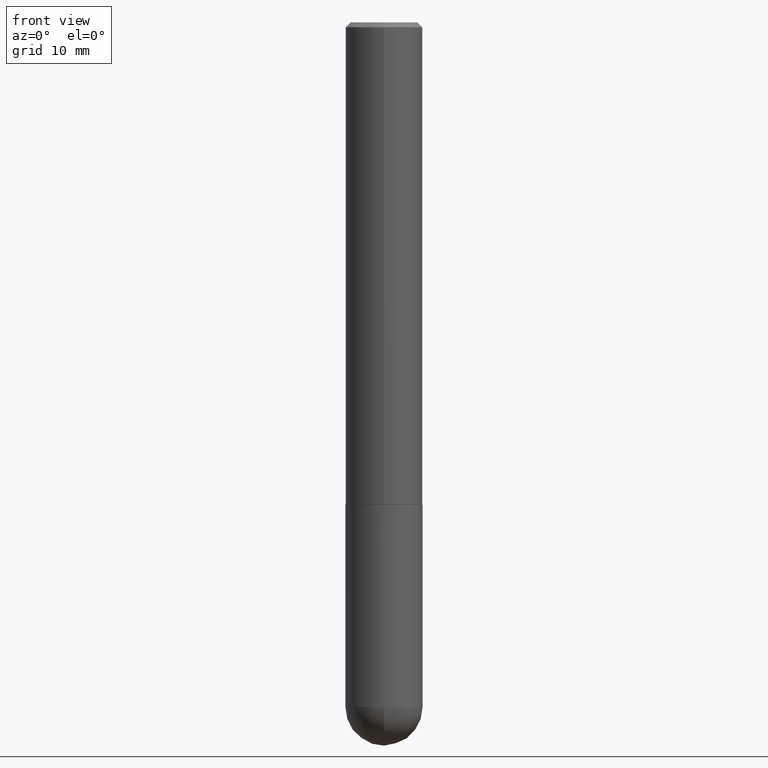
[diagram: clean part render]
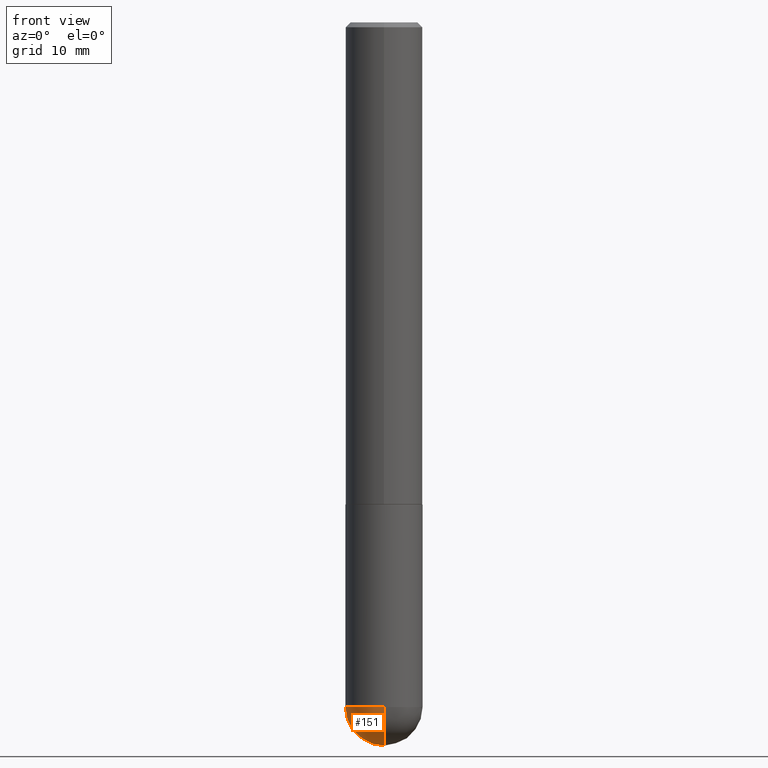
[diagram: same view with one face highlighted and labeled with its STEP entity id]
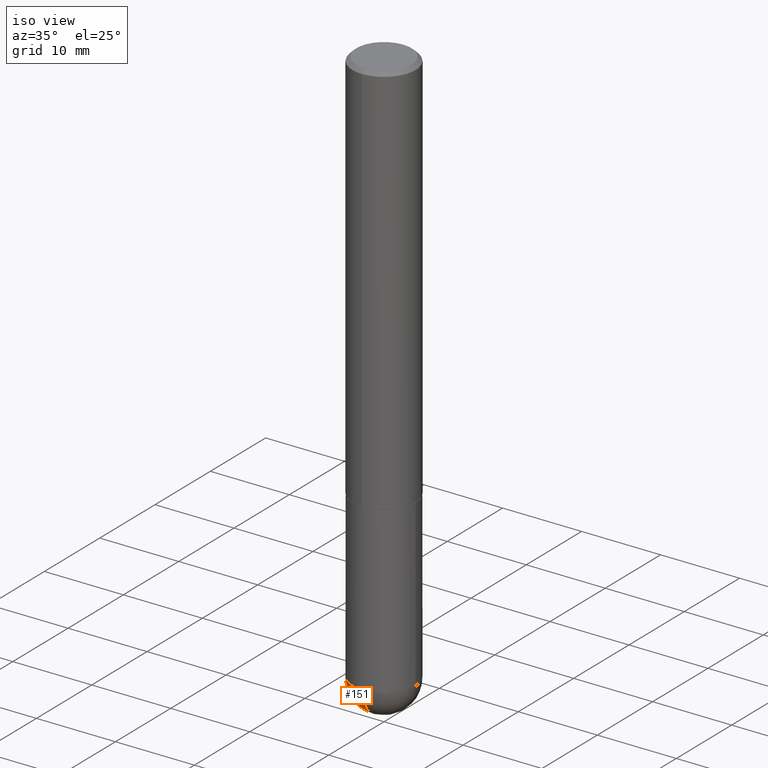
[diagram: same view with one face highlighted and labeled with its STEP entity id]
A machine part, front view. The second image highlights one B-rep face of the part: STEP entity #151.
A second angle (iso view) of the same face is appended — the face is thin or edge-on in the first view.
In plain terms, the highlighted spherical surface has radius 4.0005 mm.
Its self-contained STEP definition (entity closure, byte-faithful):
#9 = DIRECTION ( 'NONE',  ( 6.982962677686265922E-15, 1.000000000000000000, -3.469013325287946588E-15 ) ) ;
#31 = CIRCLE ( 'NONE', #265, 0.1575000000000003064 ) ;
#34 = CARTESIAN_POINT ( 'NONE',  ( 6.835818953929311707E-29, -9.759737786468243605E-15, -2.795299999999999674 ) ) ;
#36 = CARTESIAN_POINT ( 'NONE',  ( 1.099816621735654731E-15, 0.1574999999999901201, -2.795300000000000118 ) ) ;
#56 = CARTESIAN_POINT ( 'NONE',  ( -0.1575000000000000011, -7.197254592168330052E-15, -2.795299999999999674 ) ) ;
#59 = VERTEX_POINT ( 'NONE', #383 ) ;
#67 = EDGE_CURVE ( 'NONE', #405, #111, #395, .T. ) ;
#79 = DIRECTION ( 'NONE',  ( -2.445468806185136597E-29, 3.491481338843145583E-15, 1.000000000000000000 ) ) ;
#111 = VERTEX_POINT ( 'NONE', #238 ) ;
#117 = DIRECTION ( 'NONE',  ( 1.000000000000000000, -6.982962677686265922E-15, 4.883557194083112340E-29 ) ) ;
#133 = ORIENTED_EDGE ( 'NONE', *, *, #237, .F. ) ;
#137 = ORIENTED_EDGE ( 'NONE', *, *, #67, .F. ) ;
#144 = CARTESIAN_POINT ( 'NONE',  ( 6.504699176015425459E-29, -1.023392015460829390E-14, -2.795299999999999674 ) ) ;
#150 = DIRECTION ( 'NONE',  ( -1.000000000000000000, 6.982962677686265922E-15, -4.883557194083112901E-29 ) ) ;
#151 = ADVANCED_FACE ( 'NONE', ( #311 ), #275, .T. ) ;
#163 = CIRCLE ( 'NONE', #284, 0.1575000000000003064 ) ;
#166 = CARTESIAN_POINT ( 'NONE',  ( 6.835818953929311707E-29, -9.759737786468243605E-15, -2.795299999999999674 ) ) ;
#173 = AXIS2_PLACEMENT_3D ( 'NONE', #34, #285, #184 ) ;
#184 = DIRECTION ( 'NONE',  ( 1.000000000000000000, -6.982962677686261977E-15, 0.000000000000000000 ) ) ;
#195 = AXIS2_PLACEMENT_3D ( 'NONE', #144, #150, #9 ) ;
#201 = DIRECTION ( 'NONE',  ( -7.105427357601000281E-15, -1.000000000000000000, 0.000000000000000000 ) ) ;
#209 = ORIENTED_EDGE ( 'NONE', *, *, #276, .F. ) ;
#227 = CARTESIAN_POINT ( 'NONE',  ( 6.504699176015425459E-29, -1.023392015460829390E-14, -2.795299999999999674 ) ) ;
#237 = EDGE_CURVE ( 'NONE', #59, #340, #31, .T. ) ;
#238 = CARTESIAN_POINT ( 'NONE',  ( -1.119104808822091931E-15, -0.1575000000000101319, -2.795299999999998786 ) ) ;
#265 = AXIS2_PLACEMENT_3D ( 'NONE', #268, #117, #403 ) ;
#268 = CARTESIAN_POINT ( 'NONE',  ( 6.504699176015425459E-29, -1.023392015460829390E-14, -2.795299999999999674 ) ) ;
#275 = SPHERICAL_SURFACE ( 'NONE', #195, 0.1575000000000003064 ) ;
#276 = EDGE_CURVE ( 'NONE', #340, #405, #344, .T. ) ;
#284 = AXIS2_PLACEMENT_3D ( 'NONE', #227, #355, #201 ) ;
#285 = DIRECTION ( 'NONE',  ( -2.445468806185136597E-29, 3.491481338843145583E-15, 1.000000000000000000 ) ) ;
#290 = DIRECTION ( 'NONE',  ( 1.000000000000000000, -6.982962677686261977E-15, 0.000000000000000000 ) ) ;
#309 = ORIENTED_EDGE ( 'NONE', *, *, #380, .T. ) ;
#311 = FACE_OUTER_BOUND ( 'NONE', #321, .T. ) ;
#321 = EDGE_LOOP ( 'NONE', ( #133, #309, #137, #209 ) ) ;
#332 = AXIS2_PLACEMENT_3D ( 'NONE', #166, #79, #290 ) ;
#340 = VERTEX_POINT ( 'NONE', #36 ) ;
#344 = CIRCLE ( 'NONE', #173, 0.1575000000000000011 ) ;
#355 = DIRECTION ( 'NONE',  ( -1.000000000000000000, 7.105427357601001070E-15, -4.926315508542082329E-29 ) ) ;
#380 = EDGE_CURVE ( 'NONE', #59, #111, #163, .T. ) ;
#383 = CARTESIAN_POINT ( 'NONE',  ( 6.896594947516873652E-29, -1.077418437193280573E-14, -2.952799999999999869 ) ) ;
#395 = CIRCLE ( 'NONE', #332, 0.1575000000000000011 ) ;
#403 = DIRECTION ( 'NONE',  ( 6.982962677686265133E-15, 1.000000000000000000, 0.000000000000000000 ) ) ;
#405 = VERTEX_POINT ( 'NONE', #56 ) ;